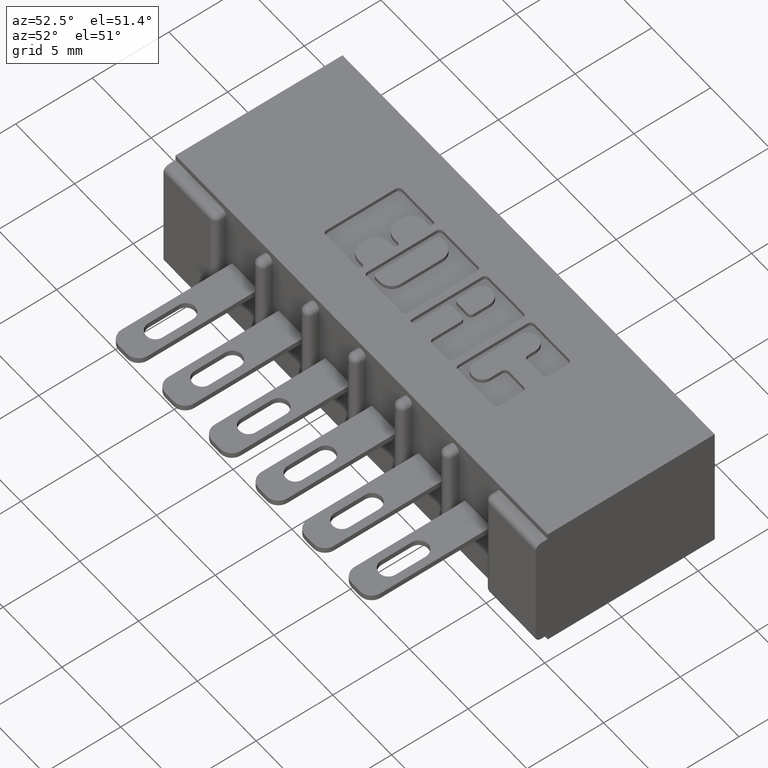
[diagram: clean part render]
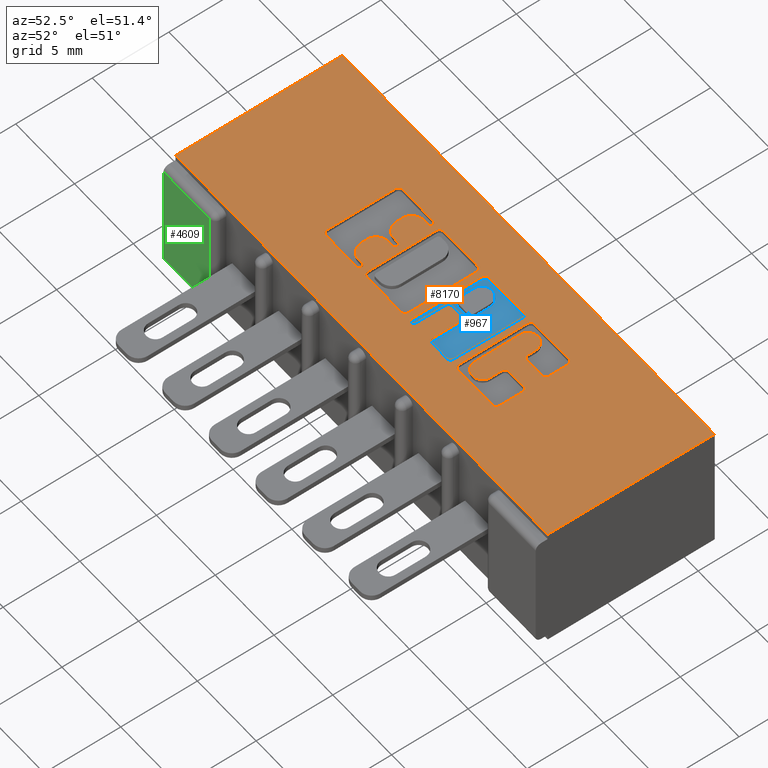
[diagram: same view with three faces highlighted in distinct colors, each labeled with its STEP entity id]
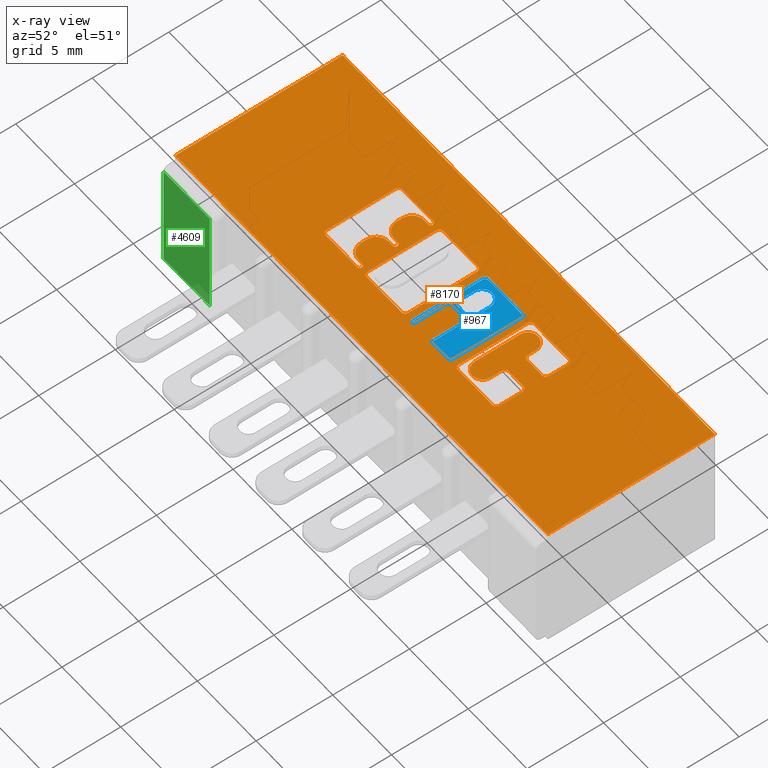
[diagram: x-ray of the same camera — body ghosted, the three highlighted faces saturated]
A machine part, auxiliary view with three faces highlighted in distinct colors.
The next image is the same camera in x-ray (body ghosted, the three faces saturated) — at least one of them is partly hidden behind the body in this view.
Their STEP definitions:

[orange] entity #8170 — the highlighted planar face has unit normal (0, 0, -1).
#45 = DIRECTION ( 'NONE',  ( 1.000000000000000000, 0.0000000000000000000, 0.0000000000000000000 ) ) ;
#46 = LINE ( 'NONE', #2171, #8092 ) ;
#49 = AXIS2_PLACEMENT_3D ( 'NONE', #10112, #2306, #728 ) ;
#60 = DIRECTION ( 'NONE',  ( -1.000000000000000000, 0.0000000000000000000, 0.0000000000000000000 ) ) ;
#129 = VERTEX_POINT ( 'NONE', #3137 ) ;
#134 = VECTOR ( 'NONE', #6921, 39.37007874015748100 ) ;
#176 = VECTOR ( 'NONE', #3289, 39.37007874015748100 ) ;
#199 = CIRCLE ( 'NONE', #4747, 0.009815670203803203800 ) ;
#202 = ORIENTED_EDGE ( 'NONE', *, *, #9957, .F. ) ;
#203 = CARTESIAN_POINT ( 'NONE',  ( 0.0000000000000000000, 0.3436567020380538200, 0.0000000000000000000 ) ) ;
#233 = LINE ( 'NONE', #8813, #6945 ) ;
#261 = EDGE_CURVE ( 'NONE', #4517, #1143, #3594, .T. ) ;
#265 = ORIENTED_EDGE ( 'NONE', *, *, #5327, .F. ) ;
#285 = AXIS2_PLACEMENT_3D ( 'NONE', #8508, #5412, #9147 ) ;
#291 = CARTESIAN_POINT ( 'NONE',  ( 1.842000000000000700, 0.03100000000000000000, 0.0000000000000000000 ) ) ;
#292 = DIRECTION ( 'NONE',  ( 0.0000000000000000000, 1.000000000000000000, -0.0000000000000000000 ) ) ;
#295 = ORIENTED_EDGE ( 'NONE', *, *, #5079, .F. ) ;
#307 = VERTEX_POINT ( 'NONE', #9976 ) ;
#363 = EDGE_CURVE ( 'NONE', #9235, #4708, #46, .T. ) ;
#382 = ORIENTED_EDGE ( 'NONE', *, *, #1161, .F. ) ;
#417 = EDGE_CURVE ( 'NONE', #4938, #8009, #1027, .T. ) ;
#433 = EDGE_CURVE ( 'NONE', #1494, #2745, #7725, .T. ) ;
#448 = ORIENTED_EDGE ( 'NONE', *, *, #804, .T. ) ;
#454 = LINE ( 'NONE', #2800, #4611 ) ;
#471 = VECTOR ( 'NONE', #8841, 39.37007874015748100 ) ;
#479 = VECTOR ( 'NONE', #1072, 39.37007874015748100 ) ;
#541 = ORIENTED_EDGE ( 'NONE', *, *, #6584, .F. ) ;
#557 = ORIENTED_EDGE ( 'NONE', *, *, #6664, .F. ) ;
#565 = ORIENTED_EDGE ( 'NONE', *, *, #7540, .F. ) ;
#567 = VERTEX_POINT ( 'NONE', #6818 ) ;
#595 = CIRCLE ( 'NONE', #3303, 0.006870969142663458500 ) ;
#613 = AXIS2_PLACEMENT_3D ( 'NONE', #2418, #4695, #3233 ) ;
#659 = EDGE_CURVE ( 'NONE', #8808, #1494, #1993, .T. ) ;
#682 = DIRECTION ( 'NONE',  ( 1.000000000000000000, 0.0000000000000000000, 0.0000000000000000000 ) ) ;
#688 = EDGE_CURVE ( 'NONE', #9333, #9814, #10080, .T. ) ;
#701 = EDGE_CURVE ( 'NONE', #7745, #2344, #6393, .T. ) ;
#728 = DIRECTION ( 'NONE',  ( 1.000000000000000000, 0.0000000000000000000, 0.0000000000000000000 ) ) ;
#760 = EDGE_CURVE ( 'NONE', #6118, #9730, #3469, .T. ) ;
#785 = VERTEX_POINT ( 'NONE', #1513 ) ;
#801 = CARTESIAN_POINT ( 'NONE',  ( 1.065044960240807000, 0.3338410318342037700, 0.0000000000000000000 ) ) ;
#804 = EDGE_CURVE ( 'NONE', #9561, #7755, #5053, .T. ) ;
#808 = VERTEX_POINT ( 'NONE', #2416 ) ;
#847 = DIRECTION ( 'NONE',  ( 1.000000000000000000, 0.0000000000000000000, 0.0000000000000000000 ) ) ;
#848 = CARTESIAN_POINT ( 'NONE',  ( 0.0000000000000000000, 0.3436567020380538200, 0.0000000000000000000 ) ) ;
#849 = AXIS2_PLACEMENT_3D ( 'NONE', #10012, #1463, #682 ) ;
#863 = CARTESIAN_POINT ( 'NONE',  ( 0.7541336065353515500, 0.3367857328953891000, 0.0000000000000000000 ) ) ;
#889 = VECTOR ( 'NONE', #6386, 39.37007874015748100 ) ;
#942 = VERTEX_POINT ( 'NONE', #4929 ) ;
#965 = VERTEX_POINT ( 'NONE', #3401 ) ;
#1000 = DIRECTION ( 'NONE',  ( 0.0000000000000000000, -1.000000000000000000, 0.0000000000000000000 ) ) ;
#1027 = LINE ( 'NONE', #3909, #9074 ) ;
#1034 = ORIENTED_EDGE ( 'NONE', *, *, #8293, .T. ) ;
#1064 = CARTESIAN_POINT ( 'NONE',  ( 0.9433306497136472200, 0.2288133606535484000, 0.0000000000000000000 ) ) ;
#1068 = CARTESIAN_POINT ( 'NONE',  ( 0.9124112885716693100, 0.1571589681657927500, 0.0000000000000000000 ) ) ;
#1072 = DIRECTION ( 'NONE',  ( 1.000000000000000000, 0.0000000000000000000, 0.0000000000000000000 ) ) ;
#1077 = CIRCLE ( 'NONE', #8979, 0.02625691779517367100 ) ;
#1096 = DIRECTION ( 'NONE',  ( 1.000000000000000000, 0.0000000000000000000, 0.0000000000000000000 ) ) ;
#1133 = CARTESIAN_POINT ( 'NONE',  ( 0.7406370600051257500, 0.2985046191005226200, 0.0000000000000000000 ) ) ;
#1142 = CARTESIAN_POINT ( 'NONE',  ( 0.9124112885716693100, 0.0000000000000000000, 0.0000000000000000000 ) ) ;
#1143 = VERTEX_POINT ( 'NONE', #2810 ) ;
#1161 = EDGE_CURVE ( 'NONE', #9730, #4298, #5152, .T. ) ;
#1205 = CARTESIAN_POINT ( 'NONE',  ( 0.9025956183678282000, 0.3338410318342128200, 0.0000000000000000000 ) ) ;
#1210 = CIRCLE ( 'NONE', #9584, 0.009815670203787086500 ) ;
#1236 = CIRCLE ( 'NONE', #2378, 0.009815670203841039800 ) ;
#1247 = EDGE_CURVE ( 'NONE', #7784, #9615, #6980, .T. ) ;
#1253 = DIRECTION ( 'NONE',  ( 1.000000000000000000, 0.0000000000000000000, 0.0000000000000000000 ) ) ;
#1274 = AXIS2_PLACEMENT_3D ( 'NONE', #5692, #4041, #7176 ) ;
#1305 = EDGE_CURVE ( 'NONE', #3373, #129, #9806, .T. ) ;
#1322 = CARTESIAN_POINT ( 'NONE',  ( 0.9531463199174504700, 0.2386290308573514900, 0.0000000000000000000 ) ) ;
#1387 = ORIENTED_EDGE ( 'NONE', *, *, #4380, .T. ) ;
#1388 = DIRECTION ( 'NONE',  ( 1.000000000000000000, 0.0000000000000000000, 0.0000000000000000000 ) ) ;
#1395 = EDGE_LOOP ( 'NONE', ( #6969, #7847, #9977, #2131 ) ) ;
#1463 = DIRECTION ( 'NONE',  ( -0.0000000000000000000, 0.0000000000000000000, 1.000000000000000000 ) ) ;
#1464 = ORIENTED_EDGE ( 'NONE', *, *, #701, .T. ) ;
#1494 = VERTEX_POINT ( 'NONE', #2402 ) ;
#1513 = CARTESIAN_POINT ( 'NONE',  ( 0.7541336064154146000, 0.1473432979619885300, 0.0000000000000000000 ) ) ;
#1526 = CARTESIAN_POINT ( 'NONE',  ( 1.082222383097458900, 0.3338410318342129300, 0.0000000000000000000 ) ) ;
#1539 = DIRECTION ( 'NONE',  ( -0.0000000000000000000, 0.0000000000000000000, 1.000000000000000000 ) ) ;
#1551 = CARTESIAN_POINT ( 'NONE',  ( 0.9433306497136472200, 0.0000000000000000000, 0.0000000000000000000 ) ) ;
#1562 = DIRECTION ( 'NONE',  ( -0.0000000000000000000, 0.0000000000000000000, 1.000000000000000000 ) ) ;
#1595 = CARTESIAN_POINT ( 'NONE',  ( 1.207862961706168700, 0.3436567020380538200, 0.0000000000000000000 ) ) ;
#1597 = CARTESIAN_POINT ( 'NONE',  ( 0.7406370600050843400, 0.2837811137948611500, 0.0000000000000000000 ) ) ;
#1598 = LINE ( 'NONE', #6967, #2588 ) ;
#1616 = DIRECTION ( 'NONE',  ( 0.0000000000000000000, -1.000000000000000000, 0.0000000000000000000 ) ) ;
#1618 = AXIS2_PLACEMENT_3D ( 'NONE', #4553, #2198, #6865 ) ;
#1647 = CARTESIAN_POINT ( 'NONE',  ( 1.217678631909972400, 0.3338410318341976700, 0.0000000000000000000 ) ) ;
#1655 = VECTOR ( 'NONE', #2512, 39.37007874015748100 ) ;
#1678 = DIRECTION ( 'NONE',  ( -0.0000000000000000000, 0.0000000000000000000, 1.000000000000000000 ) ) ;
#1719 = DIRECTION ( 'NONE',  ( 1.000000000000000000, 0.0000000000000000000, 0.0000000000000000000 ) ) ;
#1730 = CARTESIAN_POINT ( 'NONE',  ( -0.0000000000000000000, 0.3299147637527385400, 0.0000000000000000000 ) ) ;
#1734 = CARTESIAN_POINT ( 'NONE',  ( 0.9958444853039849500, 0.0000000000000000000, 0.0000000000000000000 ) ) ;
#1760 = VERTEX_POINT ( 'NONE', #6073 ) ;
#1766 = FACE_BOUND ( 'NONE', #7168, .T. ) ;
#1778 = VERTEX_POINT ( 'NONE', #1322 ) ;
#1782 = PLANE ( 'NONE',  #9552 ) ;
#1787 = EDGE_CURVE ( 'NONE', #2135, #7332, #6316, .T. ) ;
#1821 = CARTESIAN_POINT ( 'NONE',  ( 0.7406370600050843400, 0.2386290308573596500, 0.0000000000000000000 ) ) ;
#1828 = DIRECTION ( 'NONE',  ( -1.000000000000000000, 0.0000000000000000000, 0.0000000000000000000 ) ) ;
#1851 = VERTEX_POINT ( 'NONE', #1595 ) ;
#1927 = VERTEX_POINT ( 'NONE', #8784 ) ;
#1988 = LINE ( 'NONE', #4322, #2736 ) ;
#1993 = LINE ( 'NONE', #4594, #3230 ) ;
#1997 = CARTESIAN_POINT ( 'NONE',  ( 0.0000000000000000000, 0.2523709691426866400, 0.0000000000000000000 ) ) ;
#2000 = EDGE_CURVE ( 'NONE', #3641, #2657, #6720, .T. ) ;
#2007 = FACE_BOUND ( 'NONE', #9750, .T. ) ;
#2034 = DIRECTION ( 'NONE',  ( -0.0000000000000000000, 0.0000000000000000000, 1.000000000000000000 ) ) ;
#2048 = CARTESIAN_POINT ( 'NONE',  ( 1.544000000000000700, 0.03100000000000000000, 0.0000000000000000000 ) ) ;
#2060 = ORIENTED_EDGE ( 'NONE', *, *, #417, .F. ) ;
#2119 = DIRECTION ( 'NONE',  ( -0.0000000000000000000, 0.0000000000000000000, 1.000000000000000000 ) ) ;
#2125 = DIRECTION ( 'NONE',  ( 1.000000000000000000, 0.0000000000000000000, 0.0000000000000000000 ) ) ;
#2131 = ORIENTED_EDGE ( 'NONE', *, *, #3255, .F. ) ;
#2135 = VERTEX_POINT ( 'NONE', #3474 ) ;
#2151 = ORIENTED_EDGE ( 'NONE', *, *, #2294, .F. ) ;
#2169 = AXIS2_PLACEMENT_3D ( 'NONE', #10040, #7564, #4491 ) ;
#2171 = CARTESIAN_POINT ( 'NONE',  ( 0.0000000000000000000, 0.1473432979619874200, 0.0000000000000000000 ) ) ;
#2193 = LINE ( 'NONE', #7520, #6586 ) ;
#2198 = DIRECTION ( 'NONE',  ( -0.0000000000000000000, 0.0000000000000000000, 1.000000000000000000 ) ) ;
#2236 = AXIS2_PLACEMENT_3D ( 'NONE', #9502, #9437, #45 ) ;
#2248 = CARTESIAN_POINT ( 'NONE',  ( 0.6400264404161156700, 0.3338410318342129300, 0.0000000000000000000 ) ) ;
#2258 = LINE ( 'NONE', #4035, #7726 ) ;
#2294 = EDGE_CURVE ( 'NONE', #2490, #3641, #1236, .T. ) ;
#2306 = DIRECTION ( 'NONE',  ( -0.0000000000000000000, 0.0000000000000000000, 1.000000000000000000 ) ) ;
#2333 = DIRECTION ( 'NONE',  ( 1.000000000000000000, 0.0000000000000000000, 0.0000000000000000000 ) ) ;
#2342 = DIRECTION ( 'NONE',  ( 1.000000000000000000, 0.0000000000000000000, 0.0000000000000000000 ) ) ;
#2344 = VERTEX_POINT ( 'NONE', #8328 ) ;
#2372 = CARTESIAN_POINT ( 'NONE',  ( -0.0000000000000000000, 0.1473432979619860000, 0.0000000000000000000 ) ) ;
#2378 = AXIS2_PLACEMENT_3D ( 'NONE', #1205, #6725, #7433 ) ;
#2389 = ORIENTED_EDGE ( 'NONE', *, *, #8673, .F. ) ;
#2397 = DIRECTION ( 'NONE',  ( 1.000000000000000000, 0.0000000000000000000, 0.0000000000000000000 ) ) ;
#2402 = CARTESIAN_POINT ( 'NONE',  ( 0.7769550397591695700, 0.1571589681657927500, 0.0000000000000000000 ) ) ;
#2416 = CARTESIAN_POINT ( 'NONE',  ( 0.7541336065353102500, 0.2523709691426866400, 0.0000000000000000000 ) ) ;
#2418 = CARTESIAN_POINT ( 'NONE',  ( 0.6498421106199383500, 0.3338410318342129300, 0.0000000000000000000 ) ) ;
#2424 = VERTEX_POINT ( 'NONE', #8475 ) ;
#2450 = CARTESIAN_POINT ( 'NONE',  ( 0.6498421106199383500, 0.3436567020380355600, 0.0000000000000000000 ) ) ;
#2466 = VERTEX_POINT ( 'NONE', #10033 ) ;
#2471 = CIRCLE ( 'NONE', #7139, 0.009815670203806345400 ) ;
#2474 = DIRECTION ( 'NONE',  ( 1.000000000000000000, 0.0000000000000000000, 0.0000000000000000000 ) ) ;
#2477 = EDGE_CURVE ( 'NONE', #1143, #567, #1598, .T. ) ;
#2486 = CARTESIAN_POINT ( 'NONE',  ( 1.217678631909940400, 0.1571589681657857800, 0.0000000000000000000 ) ) ;
#2490 = VERTEX_POINT ( 'NONE', #6093 ) ;
#2512 = DIRECTION ( 'NONE',  ( -1.000000000000000000, -1.189163988687022500E-013, 0.0000000000000000000 ) ) ;
#2524 = CARTESIAN_POINT ( 'NONE',  ( 1.148478156973166100, 0.0000000000000000000, 0.0000000000000000000 ) ) ;
#2527 = ORIENTED_EDGE ( 'NONE', *, *, #8110, .F. ) ;
#2569 = CARTESIAN_POINT ( 'NONE',  ( 0.6400264404161156700, 0.1571589681657927500, 0.0000000000000000000 ) ) ;
#2588 = VECTOR ( 'NONE', #2342, 39.37007874015748100 ) ;
#2603 = DIRECTION ( 'NONE',  ( -1.000000000000000000, 0.0000000000000000000, 0.0000000000000000000 ) ) ;
#2612 = VERTEX_POINT ( 'NONE', #2486 ) ;
#2613 = ORIENTED_EDGE ( 'NONE', *, *, #2477, .F. ) ;
#2647 = DIRECTION ( 'NONE',  ( 1.000000000000000000, 0.0000000000000000000, 0.0000000000000000000 ) ) ;
#2657 = VERTEX_POINT ( 'NONE', #7206 ) ;
#2660 = CARTESIAN_POINT ( 'NONE',  ( 0.7541336065353102500, 0.2455000000000231700, 0.0000000000000000000 ) ) ;
#2695 = CARTESIAN_POINT ( 'NONE',  ( 0.7092269153529097100, 0.0000000000000000000, 0.0000000000000000000 ) ) ;
#2711 = LINE ( 'NONE', #4676, #134 ) ;
#2722 = CARTESIAN_POINT ( 'NONE',  ( 0.9531463199174504700, 0.2288133606535484000, 0.0000000000000000000 ) ) ;
#2736 = VECTOR ( 'NONE', #8184, 39.37007874015748100 ) ;
#2745 = VERTEX_POINT ( 'NONE', #5062 ) ;
#2785 = VERTEX_POINT ( 'NONE', #1068 ) ;
#2795 = CARTESIAN_POINT ( 'NONE',  ( 0.7406370600051257500, 0.3299147637527385400, 0.0000000000000000000 ) ) ;
#2800 = CARTESIAN_POINT ( 'NONE',  ( 1.217678631909940400, 0.0000000000000000000, 0.0000000000000000000 ) ) ;
#2810 = CARTESIAN_POINT ( 'NONE',  ( 1.092038053301265700, 0.1473432979619860000, 0.0000000000000000000 ) ) ;
#2867 = CIRCLE ( 'NONE', #10074, 0.009815670203795690700 ) ;
#2908 = CARTESIAN_POINT ( 'NONE',  ( -1.013135022034653000E-015, 0.1473432979619833400, 0.0000000000000000000 ) ) ;
#2913 = EDGE_LOOP ( 'NONE', ( #2151, #7578, #557, #3563, #8078, #5828, #4132, #8334 ) ) ;
#2915 = LINE ( 'NONE', #203, #6922 ) ;
#2954 = EDGE_CURVE ( 'NONE', #8916, #6715, #2193, .T. ) ;
#2955 = DIRECTION ( 'NONE',  ( -0.0000000000000000000, 0.0000000000000000000, 1.000000000000000000 ) ) ;
#2956 = CARTESIAN_POINT ( 'NONE',  ( 0.7406370600051098700, 0.1610852362473114100, 0.0000000000000000000 ) ) ;
#2961 = ORIENTED_EDGE ( 'NONE', *, *, #4393, .F. ) ;
#3050 = CARTESIAN_POINT ( 'NONE',  ( 1.148478156973179200, 0.0000000000000000000, 0.0000000000000000000 ) ) ;
#3103 = ORIENTED_EDGE ( 'NONE', *, *, #363, .T. ) ;
#3137 = CARTESIAN_POINT ( 'NONE',  ( 1.158293827176977600, 0.2744562271012364100, 0.0000000000000000000 ) ) ;
#3139 = LINE ( 'NONE', #291, #8859 ) ;
#3165 = ORIENTED_EDGE ( 'NONE', *, *, #8247, .F. ) ;
#3172 = LINE ( 'NONE', #8365, #9653 ) ;
#3173 = DIRECTION ( 'NONE',  ( 1.000000000000000000, 0.0000000000000000000, 0.0000000000000000000 ) ) ;
#3230 = VECTOR ( 'NONE', #7743, 39.37007874015748100 ) ;
#3233 = DIRECTION ( 'NONE',  ( 1.000000000000000000, 0.0000000000000000000, 0.0000000000000000000 ) ) ;
#3252 = CIRCLE ( 'NONE', #4170, 0.006870969142662229500 ) ;
#3253 = ORIENTED_EDGE ( 'NONE', *, *, #3429, .T. ) ;
#3255 = EDGE_CURVE ( 'NONE', #1760, #8916, #3172, .T. ) ;
#3256 = CARTESIAN_POINT ( 'NONE',  ( 1.217678631909972400, 0.2842718973050414900, 0.0000000000000000000 ) ) ;
#3289 = DIRECTION ( 'NONE',  ( 0.0000000000000000000, 1.000000000000000000, -0.0000000000000000000 ) ) ;
#3296 = ORIENTED_EDGE ( 'NONE', *, *, #3997, .F. ) ;
#3303 = AXIS2_PLACEMENT_3D ( 'NONE', #2660, #2034, #7469 ) ;
#3304 = DIRECTION ( 'NONE',  ( 1.000000000000000000, 0.0000000000000000000, 0.0000000000000000000 ) ) ;
#3345 = ORIENTED_EDGE ( 'NONE', *, *, #8778, .T. ) ;
#3347 = VERTEX_POINT ( 'NONE', #6028 ) ;
#3350 = VECTOR ( 'NONE', #1616, 39.37007874015748100 ) ;
#3365 = FACE_BOUND ( 'NONE', #8388, .T. ) ;
#3373 = VERTEX_POINT ( 'NONE', #5995 ) ;
#3401 = CARTESIAN_POINT ( 'NONE',  ( 0.7092269153529097100, 0.2837811137948611500, 0.0000000000000000000 ) ) ;
#3408 = VERTEX_POINT ( 'NONE', #8325 ) ;
#3415 = EDGE_CURVE ( 'NONE', #9101, #5258, #6220, .T. ) ;
#3429 = EDGE_CURVE ( 'NONE', #4610, #3408, #6337, .T. ) ;
#3443 = VERTEX_POINT ( 'NONE', #3544 ) ;
#3460 = ORIENTED_EDGE ( 'NONE', *, *, #7124, .F. ) ;
#3469 = CIRCLE ( 'NONE', #2236, 0.006870969142648433200 ) ;
#3472 = DIRECTION ( 'NONE',  ( -0.0000000000000000000, 0.0000000000000000000, 1.000000000000000000 ) ) ;
#3474 = CARTESIAN_POINT ( 'NONE',  ( 1.158293827176967400, 0.2268502266127603600, 0.0000000000000000000 ) ) ;
#3544 = CARTESIAN_POINT ( 'NONE',  ( 0.9958444853039849500, 0.2288133606535462700, 0.0000000000000000000 ) ) ;
#3563 = ORIENTED_EDGE ( 'NONE', *, *, #9386, .F. ) ;
#3567 = DIRECTION ( 'NONE',  ( -1.000000000000000000, 0.0000000000000000000, 0.0000000000000000000 ) ) ;
#3578 = AXIS2_PLACEMENT_3D ( 'NONE', #5872, #4242, #8200 ) ;
#3594 = CIRCLE ( 'NONE', #2169, 0.009815670203806754800 ) ;
#3618 = VERTEX_POINT ( 'NONE', #2248 ) ;
#3641 = VERTEX_POINT ( 'NONE', #6802 ) ;
#3714 = AXIS2_PLACEMENT_3D ( 'NONE', #7851, #6199, #7069 ) ;
#3718 = CARTESIAN_POINT ( 'NONE',  ( 1.158293827176967400, 0.2170345564089724000, 0.0000000000000000000 ) ) ;
#3719 = CIRCLE ( 'NONE', #3578, 0.006870969142657995000 ) ;
#3727 = DIRECTION ( 'NONE',  ( -0.0000000000000000000, 0.0000000000000000000, 1.000000000000000000 ) ) ;
#3733 = VERTEX_POINT ( 'NONE', #1526 ) ;
#3769 = CARTESIAN_POINT ( 'NONE',  ( 1.065044960240807000, 0.0000000000000000000, 0.0000000000000000000 ) ) ;
#3799 = CARTESIAN_POINT ( 'NONE',  ( 1.148478156973166100, 0.3036578454992627200, 0.0000000000000000000 ) ) ;
#3824 = VECTOR ( 'NONE', #3567, 39.37007874015748100 ) ;
#3826 = EDGE_CURVE ( 'NONE', #1927, #4815, #1210, .T. ) ;
#3909 = CARTESIAN_POINT ( 'NONE',  ( 1.217678631909972400, 0.0000000000000000000, 0.0000000000000000000 ) ) ;
#3915 = EDGE_CURVE ( 'NONE', #4815, #2135, #233, .T. ) ;
#3997 = EDGE_CURVE ( 'NONE', #129, #6158, #6221, .T. ) ;
#4018 = CARTESIAN_POINT ( 'NONE',  ( 1.207862961706153400, 0.2170345564089732300, 0.0000000000000000000 ) ) ;
#4035 = CARTESIAN_POINT ( 'NONE',  ( 1.544000000000000700, 0.0000000000000000000, 0.0000000000000000000 ) ) ;
#4041 = DIRECTION ( 'NONE',  ( -0.0000000000000000000, 0.0000000000000000000, 1.000000000000000000 ) ) ;
#4049 = EDGE_CURVE ( 'NONE', #2424, #2466, #595, .T. ) ;
#4100 = CIRCLE ( 'NONE', #8667, 0.009815670203806891800 ) ;
#4132 = ORIENTED_EDGE ( 'NONE', *, *, #6846, .F. ) ;
#4153 = VECTOR ( 'NONE', #8990, 39.37007874015748100 ) ;
#4162 = EDGE_CURVE ( 'NONE', #307, #9206, #10153, .T. ) ;
#4170 = AXIS2_PLACEMENT_3D ( 'NONE', #8735, #1678, #2474 ) ;
#4198 = ORIENTED_EDGE ( 'NONE', *, *, #7348, .F. ) ;
#4214 = LINE ( 'NONE', #4831, #176 ) ;
#4242 = DIRECTION ( 'NONE',  ( -0.0000000000000000000, 0.0000000000000000000, 1.000000000000000000 ) ) ;
#4264 = EDGE_CURVE ( 'NONE', #4298, #3618, #9384, .T. ) ;
#4273 = ORIENTED_EDGE ( 'NONE', *, *, #4162, .T. ) ;
#4298 = VERTEX_POINT ( 'NONE', #2450 ) ;
#4322 = CARTESIAN_POINT ( 'NONE',  ( 1.082222383097458900, 0.0000000000000000000, 0.0000000000000000000 ) ) ;
#4331 = EDGE_CURVE ( 'NONE', #6066, #3373, #9770, .T. ) ;
#4336 = CARTESIAN_POINT ( 'NONE',  ( 0.9295887114283312200, 0.0000000000000000000, 0.0000000000000000000 ) ) ;
#4367 = EDGE_CURVE ( 'NONE', #3618, #5159, #6211, .T. ) ;
#4375 = CARTESIAN_POINT ( 'NONE',  ( 0.9394043816321276900, 0.3436567020380094100, 0.0000000000000000000 ) ) ;
#4380 = EDGE_CURVE ( 'NONE', #6066, #8800, #1077, .T. ) ;
#4393 = EDGE_CURVE ( 'NONE', #4951, #3733, #10148, .T. ) ;
#4418 = CARTESIAN_POINT ( 'NONE',  ( -0.0000000000000000000, 0.2744562271012364100, 0.0000000000000000000 ) ) ;
#4446 = FACE_BOUND ( 'NONE', #2913, .T. ) ;
#4467 = DIRECTION ( 'NONE',  ( -0.0000000000000000000, 0.0000000000000000000, 1.000000000000000000 ) ) ;
#4479 = CIRCLE ( 'NONE', #7871, 0.006870969142663458500 ) ;
#4481 = EDGE_CURVE ( 'NONE', #8954, #9804, #9259, .T. ) ;
#4491 = DIRECTION ( 'NONE',  ( 1.000000000000000000, 0.0000000000000000000, 0.0000000000000000000 ) ) ;
#4517 = VERTEX_POINT ( 'NONE', #9748 ) ;
#4525 = ORIENTED_EDGE ( 'NONE', *, *, #8943, .F. ) ;
#4527 = DIRECTION ( 'NONE',  ( -1.000000000000000000, -3.427012734660361200E-014, 0.0000000000000000000 ) ) ;
#4534 = VECTOR ( 'NONE', #60, 39.37007874015748100 ) ;
#4543 = DIRECTION ( 'NONE',  ( -0.0000000000000000000, 0.0000000000000000000, 1.000000000000000000 ) ) ;
#4553 = CARTESIAN_POINT ( 'NONE',  ( 1.005660155507788200, 0.1571589681657906400, 0.0000000000000000000 ) ) ;
#4564 = CIRCLE ( 'NONE', #6210, 0.03141014465217454400 ) ;
#4594 = CARTESIAN_POINT ( 'NONE',  ( 0.7769550397591695700, 0.0000000000000000000, 0.0000000000000000000 ) ) ;
#4606 = CARTESIAN_POINT ( 'NONE',  ( 0.7867707099630104600, 0.3338410318342129300, 0.0000000000000000000 ) ) ;
#4610 = VERTEX_POINT ( 'NONE', #4375 ) ;
#4611 = VECTOR ( 'NONE', #7387, 39.37007874015748100 ) ;
#4615 = ORIENTED_EDGE ( 'NONE', *, *, #3826, .F. ) ;
#4634 = DIRECTION ( 'NONE',  ( -0.0000000000000000000, 0.0000000000000000000, 1.000000000000000000 ) ) ;
#4650 = AXIS2_PLACEMENT_3D ( 'NONE', #5791, #5122, #1096 ) ;
#4676 = CARTESIAN_POINT ( 'NONE',  ( 1.095964321382818700, 0.0000000000000000000, 0.0000000000000000000 ) ) ;
#4689 = VECTOR ( 'NONE', #847, 39.37007874015748100 ) ;
#4695 = DIRECTION ( 'NONE',  ( -0.0000000000000000000, 0.0000000000000000000, 1.000000000000000000 ) ) ;
#4708 = VERTEX_POINT ( 'NONE', #8276 ) ;
#4747 = AXIS2_PLACEMENT_3D ( 'NONE', #2722, #9725, #5831 ) ;
#4808 = VECTOR ( 'NONE', #7961, 39.37007874015748100 ) ;
#4815 = VERTEX_POINT ( 'NONE', #10020 ) ;
#4819 = VECTOR ( 'NONE', #10070, 39.37007874015748100 ) ;
#4831 = CARTESIAN_POINT ( 'NONE',  ( 0.7092269153529280300, 0.0000000000000000000, 0.0000000000000000000 ) ) ;
#4841 = ORIENTED_EDGE ( 'NONE', *, *, #5374, .T. ) ;
#4844 = ORIENTED_EDGE ( 'NONE', *, *, #6397, .F. ) ;
#4929 = CARTESIAN_POINT ( 'NONE',  ( 0.7541336065353516600, 0.3299147637527385400, 0.0000000000000000000 ) ) ;
#4938 = VERTEX_POINT ( 'NONE', #3256 ) ;
#4945 = AXIS2_PLACEMENT_3D ( 'NONE', #1133, #5823, #9717 ) ;
#4951 = VERTEX_POINT ( 'NONE', #9387 ) ;
#4998 = VERTEX_POINT ( 'NONE', #6317 ) ;
#5033 = LINE ( 'NONE', #2372, #889 ) ;
#5053 = LINE ( 'NONE', #1551, #3350 ) ;
#5062 = CARTESIAN_POINT ( 'NONE',  ( 0.7867707099629762700, 0.1473432979619860000, 0.0000000000000000000 ) ) ;
#5079 = EDGE_CURVE ( 'NONE', #1851, #4951, #2915, .T. ) ;
#5080 = ORIENTED_EDGE ( 'NONE', *, *, #5253, .F. ) ;
#5122 = DIRECTION ( 'NONE',  ( -0.0000000000000000000, 0.0000000000000000000, 1.000000000000000000 ) ) ;
#5152 = LINE ( 'NONE', #7398, #5274 ) ;
#5159 = VERTEX_POINT ( 'NONE', #2569 ) ;
#5161 = VERTEX_POINT ( 'NONE', #6610 ) ;
#5253 = EDGE_CURVE ( 'NONE', #2612, #1927, #454, .T. ) ;
#5258 = VERTEX_POINT ( 'NONE', #9769 ) ;
#5262 = AXIS2_PLACEMENT_3D ( 'NONE', #8024, #3472, #7305 ) ;
#5267 = DIRECTION ( 'NONE',  ( -0.0000000000000000000, 1.000000000000000000, -0.0000000000000000000 ) ) ;
#5274 = VECTOR ( 'NONE', #9846, 39.37007874015748100 ) ;
#5327 = EDGE_CURVE ( 'NONE', #2466, #808, #4479, .T. ) ;
#5346 = AXIS2_PLACEMENT_3D ( 'NONE', #4606, #4634, #6917 ) ;
#5359 = AXIS2_PLACEMENT_3D ( 'NONE', #863, #8560, #2333 ) ;
#5368 = EDGE_CURVE ( 'NONE', #5395, #785, #6787, .T. ) ;
#5374 = EDGE_CURVE ( 'NONE', #9721, #1778, #7280, .T. ) ;
#5395 = VERTEX_POINT ( 'NONE', #6775 ) ;
#5402 = DIRECTION ( 'NONE',  ( 0.0000000000000000000, -1.000000000000000000, 0.0000000000000000000 ) ) ;
#5412 = DIRECTION ( 'NONE',  ( -0.0000000000000000000, 0.0000000000000000000, 1.000000000000000000 ) ) ;
#5466 = DIRECTION ( 'NONE',  ( 1.000000000000000000, 0.0000000000000000000, 0.0000000000000000000 ) ) ;
#5581 = CARTESIAN_POINT ( 'NONE',  ( -1.915567620543394800E-014, 0.1610852362472233500, 0.0000000000000000000 ) ) ;
#5630 = CARTESIAN_POINT ( 'NONE',  ( 0.7769550397591695700, 0.3338410318342129300, 0.0000000000000000000 ) ) ;
#5643 = DIRECTION ( 'NONE',  ( 0.0000000000000000000, 0.0000000000000000000, -1.000000000000000000 ) ) ;
#5656 = LINE ( 'NONE', #3050, #9558 ) ;
#5692 = CARTESIAN_POINT ( 'NONE',  ( 1.092038053301299700, 0.3338410318342129300, 0.0000000000000000000 ) ) ;
#5727 = DIRECTION ( 'NONE',  ( -0.0000000000000000000, 0.0000000000000000000, 1.000000000000000000 ) ) ;
#5748 = EDGE_CURVE ( 'NONE', #1778, #9561, #199, .T. ) ;
#5753 = CARTESIAN_POINT ( 'NONE',  ( 0.9433306497136472200, 0.1542142671046507800, 0.0000000000000000000 ) ) ;
#5762 = DIRECTION ( 'NONE',  ( -1.000000000000000000, -0.0000000000000000000, -0.0000000000000000000 ) ) ;
#5779 = EDGE_CURVE ( 'NONE', #9235, #9814, #7622, .T. ) ;
#5790 = LINE ( 'NONE', #2695, #8193 ) ;
#5791 = CARTESIAN_POINT ( 'NONE',  ( 0.7867707099629762700, 0.1571589681657927500, 0.0000000000000000000 ) ) ;
#5823 = DIRECTION ( 'NONE',  ( -0.0000000000000000000, 0.0000000000000000000, 1.000000000000000000 ) ) ;
#5828 = ORIENTED_EDGE ( 'NONE', *, *, #659, .F. ) ;
#5831 = DIRECTION ( 'NONE',  ( 1.000000000000000000, 0.0000000000000000000, 0.0000000000000000000 ) ) ;
#5832 = VECTOR ( 'NONE', #9904, 39.37007874015748100 ) ;
#5845 = EDGE_CURVE ( 'NONE', #8490, #1760, #3139, .T. ) ;
#5872 = CARTESIAN_POINT ( 'NONE',  ( 0.9364596805709872700, 0.1542142671046507800, 0.0000000000000000000 ) ) ;
#5928 = ORIENTED_EDGE ( 'NONE', *, *, #4049, .F. ) ;
#5945 = ORIENTED_EDGE ( 'NONE', *, *, #8868, .T. ) ;
#5956 = VECTOR ( 'NONE', #4527, 39.37007874015748100 ) ;
#5981 = CARTESIAN_POINT ( 'NONE',  ( 1.065044960240807000, 0.1571589681657836700, 0.0000000000000000000 ) ) ;
#5995 = CARTESIAN_POINT ( 'NONE',  ( 1.148478156973166100, 0.2842718973050480400, 0.0000000000000000000 ) ) ;
#6004 = VERTEX_POINT ( 'NONE', #6059 ) ;
#6028 = CARTESIAN_POINT ( 'NONE',  ( 0.9025956183678624000, 0.1473432979619860000, 0.0000000000000000000 ) ) ;
#6039 = ORIENTED_EDGE ( 'NONE', *, *, #7320, .F. ) ;
#6047 = DIRECTION ( 'NONE',  ( 1.000000000000000000, 0.0000000000000000000, 0.0000000000000000000 ) ) ;
#6059 = CARTESIAN_POINT ( 'NONE',  ( 0.9958444853039849500, 0.1571589681657906400, 0.0000000000000000000 ) ) ;
#6066 = VERTEX_POINT ( 'NONE', #3799 ) ;
#6073 = CARTESIAN_POINT ( 'NONE',  ( 0.2979999999999999900, 0.03100000000000000000, 0.0000000000000000000 ) ) ;
#6082 = CARTESIAN_POINT ( 'NONE',  ( 1.207862961706167400, 0.2842718973050414900, 0.0000000000000000000 ) ) ;
#6093 = CARTESIAN_POINT ( 'NONE',  ( 0.9124112885716693100, 0.3338410318342129300, 0.0000000000000000000 ) ) ;
#6102 = CARTESIAN_POINT ( 'NONE',  ( 0.7541336065353102500, 0.2455000000000231700, 0.0000000000000000000 ) ) ;
#6118 = VERTEX_POINT ( 'NONE', #8424 ) ;
#6130 = ORIENTED_EDGE ( 'NONE', *, *, #688, .T. ) ;
#6158 = VERTEX_POINT ( 'NONE', #10106 ) ;
#6199 = DIRECTION ( 'NONE',  ( -0.0000000000000000000, 0.0000000000000000000, 1.000000000000000000 ) ) ;
#6210 = AXIS2_PLACEMENT_3D ( 'NONE', #1597, #7047, #2397 ) ;
#6212 = DIRECTION ( 'NONE',  ( 1.000000000000000000, 0.0000000000000000000, 0.0000000000000000000 ) ) ;
#6211 = LINE ( 'NONE', #6465, #471 ) ;
#6220 = LINE ( 'NONE', #4336, #8651 ) ;
#6221 = LINE ( 'NONE', #4418, #479 ) ;
#6237 = CARTESIAN_POINT ( 'NONE',  ( 1.095964321382818700, 0.3036578459575323700, 0.0000000000000000000 ) ) ;
#6273 = ORIENTED_EDGE ( 'NONE', *, *, #1247, .T. ) ;
#6316 = CIRCLE ( 'NONE', #9568, 0.009815670203788042300 ) ;
#6317 = CARTESIAN_POINT ( 'NONE',  ( 0.7541336064154146000, 0.1610852362473130200, 0.0000000000000000000 ) ) ;
#6323 = EDGE_CURVE ( 'NONE', #5161, #4998, #3252, .T. ) ;
#6337 = LINE ( 'NONE', #9834, #4153 ) ;
#6371 = CARTESIAN_POINT ( 'NONE',  ( 1.055229290037011900, 0.3338410318342132100, 0.0000000000000000000 ) ) ;
#6386 = DIRECTION ( 'NONE',  ( 1.000000000000000000, 0.0000000000000000000, 0.0000000000000000000 ) ) ;
#6393 = CIRCLE ( 'NONE', #8366, 0.03141014465215624000 ) ;
#6397 = EDGE_CURVE ( 'NONE', #4998, #9206, #9210, .T. ) ;
#6398 = ORIENTED_EDGE ( 'NONE', *, *, #4264, .F. ) ;
#6401 = ORIENTED_EDGE ( 'NONE', *, *, #6323, .F. ) ;
#6428 = DIRECTION ( 'NONE',  ( -1.000000000000000000, 0.0000000000000000000, -0.0000000000000000000 ) ) ;
#6465 = CARTESIAN_POINT ( 'NONE',  ( 0.6400264404161156700, 0.0000000000000000000, 0.0000000000000000000 ) ) ;
#6584 = EDGE_CURVE ( 'NONE', #9101, #7755, #3719, .T. ) ;
#6586 = VECTOR ( 'NONE', #2125, 39.37007874015748100 ) ;
#6610 = CARTESIAN_POINT ( 'NONE',  ( 0.7610045756779980600, 0.1542142671046507800, 0.0000000000000000000 ) ) ;
#6664 = EDGE_CURVE ( 'NONE', #3347, #2785, #4100, .T. ) ;
#6676 = DIRECTION ( 'NONE',  ( -0.0000000000000000000, 0.0000000000000000000, 1.000000000000000000 ) ) ;
#6715 = VERTEX_POINT ( 'NONE', #7511 ) ;
#6720 = LINE ( 'NONE', #848, #4534 ) ;
#6725 = DIRECTION ( 'NONE',  ( -0.0000000000000000000, 0.0000000000000000000, 1.000000000000000000 ) ) ;
#6746 = CARTESIAN_POINT ( 'NONE',  ( 1.207862961706134500, 0.1571589681657927500, 0.0000000000000000000 ) ) ;
#6747 = LINE ( 'NONE', #1142, #8946 ) ;
#6754 = CIRCLE ( 'NONE', #8281, 0.009815670203796920600 ) ;
#6772 = DIRECTION ( 'NONE',  ( 0.0000000000000000000, 1.000000000000000000, -0.0000000000000000000 ) ) ;
#6775 = CARTESIAN_POINT ( 'NONE',  ( 0.6498421106199189200, 0.1473432979619878100, 0.0000000000000000000 ) ) ;
#6780 = ORIENTED_EDGE ( 'NONE', *, *, #9830, .F. ) ;
#6787 = LINE ( 'NONE', #2908, #5832 ) ;
#6788 = DIRECTION ( 'NONE',  ( 1.000000000000000000, 0.0000000000000000000, 0.0000000000000000000 ) ) ;
#6802 = CARTESIAN_POINT ( 'NONE',  ( 0.9025956183678963700, 0.3436567020380538200, 0.0000000000000000000 ) ) ;
#6818 = CARTESIAN_POINT ( 'NONE',  ( 1.207862961706134500, 0.1473432979619860000, 0.0000000000000000000 ) ) ;
#6846 = EDGE_CURVE ( 'NONE', #2657, #8808, #7858, .T. ) ;
#6857 = CARTESIAN_POINT ( 'NONE',  ( 1.055229290037010800, 0.1473432979619874200, 0.0000000000000000000 ) ) ;
#6862 = CIRCLE ( 'NONE', #7691, 0.009815670203796511200 ) ;
#6865 = DIRECTION ( 'NONE',  ( 1.000000000000000000, 0.0000000000000000000, 0.0000000000000000000 ) ) ;
#6867 = LINE ( 'NONE', #1997, #3824 ) ;
#6917 = DIRECTION ( 'NONE',  ( 1.000000000000000000, 0.0000000000000000000, 0.0000000000000000000 ) ) ;
#6921 = DIRECTION ( 'NONE',  ( 0.0000000000000000000, 1.000000000000000000, -0.0000000000000000000 ) ) ;
#6922 = VECTOR ( 'NONE', #2603, 39.37007874015748100 ) ;
#6945 = VECTOR ( 'NONE', #1828, 39.37007874015748100 ) ;
#6967 = CARTESIAN_POINT ( 'NONE',  ( -0.0000000000000000000, 0.1473432979619860000, 0.0000000000000000000 ) ) ;
#6969 = ORIENTED_EDGE ( 'NONE', *, *, #5845, .F. ) ;
#6980 = CIRCLE ( 'NONE', #9636, 0.02625691779518022500 ) ;
#7031 = EDGE_CURVE ( 'NONE', #8954, #942, #8713, .T. ) ;
#7047 = DIRECTION ( 'NONE',  ( -0.0000000000000000000, 0.0000000000000000000, 1.000000000000000000 ) ) ;
#7069 = DIRECTION ( 'NONE',  ( 1.000000000000000000, 0.0000000000000000000, 0.0000000000000000000 ) ) ;
#7124 = EDGE_CURVE ( 'NONE', #9333, #3408, #2867, .T. ) ;
#7139 = AXIS2_PLACEMENT_3D ( 'NONE', #6746, #2119, #6047 ) ;
#7145 = ORIENTED_EDGE ( 'NONE', *, *, #4331, .F. ) ;
#7168 = EDGE_LOOP ( 'NONE', ( #7582, #3296, #8528, #7145, #1387, #202, #6273, #7250, #9165, #9416, #4615, #5080, #6780, #2613, #9067, #6039, #2961, #295, #565, #2060 ) ) ;
#7176 = DIRECTION ( 'NONE',  ( 1.000000000000000000, 0.0000000000000000000, 0.0000000000000000000 ) ) ;
#7178 = VERTEX_POINT ( 'NONE', #7281 ) ;
#7199 = CARTESIAN_POINT ( 'NONE',  ( 0.0000000000000000000, 0.4600000000000000200, 0.0000000000000000000 ) ) ;
#7202 = EDGE_CURVE ( 'NONE', #2785, #2490, #6747, .T. ) ;
#7206 = CARTESIAN_POINT ( 'NONE',  ( 0.7867707099630104600, 0.3436567020380538200, 0.0000000000000000000 ) ) ;
#7217 = DIRECTION ( 'NONE',  ( -0.0000000000000000000, 0.0000000000000000000, 1.000000000000000000 ) ) ;
#7234 = CIRCLE ( 'NONE', #1618, 0.009815670203803340800 ) ;
#7250 = ORIENTED_EDGE ( 'NONE', *, *, #7967, .F. ) ;
#7252 = ORIENTED_EDGE ( 'NONE', *, *, #3415, .T. ) ;
#7254 = CARTESIAN_POINT ( 'NONE',  ( 0.2979999999999999900, 0.4600000000000000200, 0.0000000000000000000 ) ) ;
#7280 = LINE ( 'NONE', #7642, #5956 ) ;
#7281 = CARTESIAN_POINT ( 'NONE',  ( 0.7406370600050843400, 0.2523709691426866400, 0.0000000000000000000 ) ) ;
#7305 = DIRECTION ( 'NONE',  ( 1.000000000000000000, 0.0000000000000000000, 0.0000000000000000000 ) ) ;
#7309 = CARTESIAN_POINT ( 'NONE',  ( -0.0000000000000000000, 0.2386290308573596500, 0.0000000000000000000 ) ) ;
#7313 = AXIS2_PLACEMENT_3D ( 'NONE', #8493, #1539, #6212 ) ;
#7320 = EDGE_CURVE ( 'NONE', #3733, #4517, #1988, .T. ) ;
#7322 = CARTESIAN_POINT ( 'NONE',  ( 0.9860288151001880300, 0.2288133606535556200, 0.0000000000000000000 ) ) ;
#7332 = VERTEX_POINT ( 'NONE', #9785 ) ;
#7348 = EDGE_CURVE ( 'NONE', #808, #7178, #6867, .T. ) ;
#7382 = EDGE_CURVE ( 'NONE', #6004, #4708, #7234, .T. ) ;
#7387 = DIRECTION ( 'NONE',  ( 0.0000000000000000000, 1.000000000000000000, -0.0000000000000000000 ) ) ;
#7398 = CARTESIAN_POINT ( 'NONE',  ( 0.0000000000000000000, 0.3436567020380355600, 0.0000000000000000000 ) ) ;
#7433 = DIRECTION ( 'NONE',  ( 1.000000000000000000, 0.0000000000000000000, 0.0000000000000000000 ) ) ;
#7469 = DIRECTION ( 'NONE',  ( 1.000000000000000000, 0.0000000000000000000, 0.0000000000000000000 ) ) ;
#7496 = ORIENTED_EDGE ( 'NONE', *, *, #5779, .F. ) ;
#7511 = CARTESIAN_POINT ( 'NONE',  ( 1.544000000000000700, 0.4600000000000000200, 0.0000000000000000000 ) ) ;
#7520 = CARTESIAN_POINT ( 'NONE',  ( 0.0000000000000000000, 0.4600000000000000200, 0.0000000000000000000 ) ) ;
#7540 = EDGE_CURVE ( 'NONE', #8009, #1851, #9173, .T. ) ;
#7564 = DIRECTION ( 'NONE',  ( -0.0000000000000000000, 0.0000000000000000000, 1.000000000000000000 ) ) ;
#7578 = ORIENTED_EDGE ( 'NONE', *, *, #7202, .F. ) ;
#7582 = ORIENTED_EDGE ( 'NONE', *, *, #7977, .F. ) ;
#7607 = EDGE_CURVE ( 'NONE', #785, #5161, #9690, .T. ) ;
#7622 = CIRCLE ( 'NONE', #5262, 0.009815670203796237100 ) ;
#7642 = CARTESIAN_POINT ( 'NONE',  ( -8.177847276076918000E-015, 0.2386290308573187900, 0.0000000000000000000 ) ) ;
#7691 = AXIS2_PLACEMENT_3D ( 'NONE', #8529, #10023, #9324 ) ;
#7725 = CIRCLE ( 'NONE', #4650, 0.009815670203806754800 ) ;
#7726 = VECTOR ( 'NONE', #9671, 39.37007874015748100 ) ;
#7733 = CARTESIAN_POINT ( 'NONE',  ( 0.9295887114283312200, 0.1542142671046507800, 0.0000000000000000000 ) ) ;
#7743 = DIRECTION ( 'NONE',  ( 0.0000000000000000000, -1.000000000000000000, 0.0000000000000000000 ) ) ;
#7745 = VERTEX_POINT ( 'NONE', #1821 ) ;
#7755 = VERTEX_POINT ( 'NONE', #5753 ) ;
#7784 = VERTEX_POINT ( 'NONE', #8315 ) ;
#7847 = ORIENTED_EDGE ( 'NONE', *, *, #8283, .T. ) ;
#7851 = CARTESIAN_POINT ( 'NONE',  ( 0.7541336065353357900, 0.1542142671046507800, 0.0000000000000000000 ) ) ;
#7858 = CIRCLE ( 'NONE', #5346, 0.009815670203840902800 ) ;
#7871 = AXIS2_PLACEMENT_3D ( 'NONE', #6102, #4467, #1388 ) ;
#7951 = CIRCLE ( 'NONE', #9207, 0.009815670203804980100 ) ;
#7961 = DIRECTION ( 'NONE',  ( 1.000000000000000000, 0.0000000000000000000, 0.0000000000000000000 ) ) ;
#7967 = EDGE_CURVE ( 'NONE', #7332, #9615, #5656, .T. ) ;
#7977 = EDGE_CURVE ( 'NONE', #6158, #4938, #7951, .T. ) ;
#7993 = ORIENTED_EDGE ( 'NONE', *, *, #7607, .F. ) ;
#8002 = DIRECTION ( 'NONE',  ( 0.0000000000000000000, 1.000000000000000000, -0.0000000000000000000 ) ) ;
#8009 = VERTEX_POINT ( 'NONE', #1647 ) ;
#8024 = CARTESIAN_POINT ( 'NONE',  ( 1.055229290037010800, 0.1571589681657836700, 0.0000000000000000000 ) ) ;
#8078 = ORIENTED_EDGE ( 'NONE', *, *, #433, .F. ) ;
#8092 = VECTOR ( 'NONE', #8370, 39.37007874015748100 ) ;
#8110 = EDGE_CURVE ( 'NONE', #942, #6118, #9895, .T. ) ;
#8170 = ADVANCED_FACE ( 'NONE', ( #1766, #3365, #8216, #4446, #2007 ), #1782, .F. ) ;
#8184 = DIRECTION ( 'NONE',  ( 0.0000000000000000000, -1.000000000000000000, 0.0000000000000000000 ) ) ;
#8193 = VECTOR ( 'NONE', #8956, 39.37007874015748100 ) ;
#8200 = DIRECTION ( 'NONE',  ( 1.000000000000000000, 0.0000000000000000000, 0.0000000000000000000 ) ) ;
#8216 = FACE_OUTER_BOUND ( 'NONE', #1395, .T. ) ;
#8247 = EDGE_CURVE ( 'NONE', #307, #2344, #4214, .T. ) ;
#8276 = CARTESIAN_POINT ( 'NONE',  ( 1.005660155507786000, 0.1473432979619874200, 0.0000000000000000000 ) ) ;
#8281 = AXIS2_PLACEMENT_3D ( 'NONE', #7322, #9740, #2647 ) ;
#8283 = EDGE_CURVE ( 'NONE', #8490, #6715, #2258, .T. ) ;
#8293 = EDGE_CURVE ( 'NONE', #3443, #9721, #6754, .T. ) ;
#8315 = CARTESIAN_POINT ( 'NONE',  ( 1.095964321382818700, 0.1873421540424558300, 0.0000000000000000000 ) ) ;
#8325 = CARTESIAN_POINT ( 'NONE',  ( 1.055229290037014200, 0.3436567020380094100, 0.0000000000000000000 ) ) ;
#8328 = CARTESIAN_POINT ( 'NONE',  ( 0.7092269153529280300, 0.2072188862052033700, 0.0000000000000000000 ) ) ;
#8334 = ORIENTED_EDGE ( 'NONE', *, *, #2000, .F. ) ;
#8365 = CARTESIAN_POINT ( 'NONE',  ( 0.2979999999999999900, 0.0000000000000000000, 0.0000000000000000000 ) ) ;
#8366 = AXIS2_PLACEMENT_3D ( 'NONE', #9291, #2955, #8471 ) ;
#8370 = DIRECTION ( 'NONE',  ( -1.000000000000000000, 0.0000000000000000000, 0.0000000000000000000 ) ) ;
#8383 = CARTESIAN_POINT ( 'NONE',  ( 1.122221239177999100, 0.1873421540424558300, 0.0000000000000000000 ) ) ;
#8388 = EDGE_LOOP ( 'NONE', ( #8759, #4525, #3345, #4198, #265, #5928, #9457, #1464, #3165, #4273, #4844, #6401, #7993, #9070, #2389, #9982, #6398, #382, #8401, #2527, #8553 ) ) ;
#8401 = ORIENTED_EDGE ( 'NONE', *, *, #760, .F. ) ;
#8424 = CARTESIAN_POINT ( 'NONE',  ( 0.7610045756779999500, 0.3367857328953891000, 0.0000000000000000000 ) ) ;
#8451 = LINE ( 'NONE', #7309, #4808 ) ;
#8460 = ORIENTED_EDGE ( 'NONE', *, *, #5748, .T. ) ;
#8471 = DIRECTION ( 'NONE',  ( 1.000000000000000000, 0.0000000000000000000, 0.0000000000000000000 ) ) ;
#8475 = CARTESIAN_POINT ( 'NONE',  ( 0.7541336064153890700, 0.2386290308573596500, 0.0000000000000000000 ) ) ;
#8490 = VERTEX_POINT ( 'NONE', #2048 ) ;
#8493 = CARTESIAN_POINT ( 'NONE',  ( 1.158293827176977600, 0.2842718973050480400, 0.0000000000000000000 ) ) ;
#8508 = CARTESIAN_POINT ( 'NONE',  ( 0.7406370600051098700, 0.1924953808994932000, 0.0000000000000000000 ) ) ;
#8524 = VECTOR ( 'NONE', #1000, 39.37007874015748100 ) ;
#8528 = ORIENTED_EDGE ( 'NONE', *, *, #1305, .F. ) ;
#8529 = CARTESIAN_POINT ( 'NONE',  ( 0.9394043816321276900, 0.3338410318342129300, 0.0000000000000000000 ) ) ;
#8553 = ORIENTED_EDGE ( 'NONE', *, *, #7031, .F. ) ;
#8560 = DIRECTION ( 'NONE',  ( -0.0000000000000000000, 0.0000000000000000000, 1.000000000000000000 ) ) ;
#8579 = CIRCLE ( 'NONE', #849, 0.009815670203805798900 ) ;
#8651 = VECTOR ( 'NONE', #6772, 39.37007874015748100 ) ;
#8667 = AXIS2_PLACEMENT_3D ( 'NONE', #8993, #6676, #1253 ) ;
#8673 = EDGE_CURVE ( 'NONE', #5159, #5395, #8579, .T. ) ;
#8713 = LINE ( 'NONE', #1730, #4689 ) ;
#8735 = CARTESIAN_POINT ( 'NONE',  ( 0.7541336065353357900, 0.1542142671046507800, 0.0000000000000000000 ) ) ;
#8759 = ORIENTED_EDGE ( 'NONE', *, *, #4481, .T. ) ;
#8778 = EDGE_CURVE ( 'NONE', #965, #7178, #4564, .T. ) ;
#8784 = CARTESIAN_POINT ( 'NONE',  ( 1.217678631909940400, 0.2170345564089732300, 0.0000000000000000000 ) ) ;
#8800 = VERTEX_POINT ( 'NONE', #6237 ) ;
#8808 = VERTEX_POINT ( 'NONE', #5630 ) ;
#8813 = CARTESIAN_POINT ( 'NONE',  ( 0.0000000000000000000, 0.2268502266127603600, 0.0000000000000000000 ) ) ;
#8841 = DIRECTION ( 'NONE',  ( 0.0000000000000000000, -1.000000000000000000, 0.0000000000000000000 ) ) ;
#8859 = VECTOR ( 'NONE', #5762, 39.37007874015748100 ) ;
#8868 = EDGE_CURVE ( 'NONE', #6004, #3443, #8942, .T. ) ;
#8902 = CARTESIAN_POINT ( 'NONE',  ( 0.7541336065353515500, 0.3436567020380355600, 0.0000000000000000000 ) ) ;
#8912 = EDGE_CURVE ( 'NONE', #7745, #2424, #8451, .T. ) ;
#8916 = VERTEX_POINT ( 'NONE', #7254 ) ;
#8942 = LINE ( 'NONE', #1734, #9446 ) ;
#8943 = EDGE_CURVE ( 'NONE', #965, #9804, #5790, .T. ) ;
#8946 = VECTOR ( 'NONE', #292, 39.37007874015748100 ) ;
#8954 = VERTEX_POINT ( 'NONE', #2795 ) ;
#8956 = DIRECTION ( 'NONE',  ( 0.0000000000000000000, 1.000000000000000000, -0.0000000000000000000 ) ) ;
#8979 = AXIS2_PLACEMENT_3D ( 'NONE', #9618, #5727, #1719 ) ;
#8990 = DIRECTION ( 'NONE',  ( 1.000000000000000000, 0.0000000000000000000, 0.0000000000000000000 ) ) ;
#8993 = CARTESIAN_POINT ( 'NONE',  ( 0.9025956183678624000, 0.1571589681657927500, 0.0000000000000000000 ) ) ;
#9067 = ORIENTED_EDGE ( 'NONE', *, *, #261, .F. ) ;
#9070 = ORIENTED_EDGE ( 'NONE', *, *, #5368, .F. ) ;
#9074 = VECTOR ( 'NONE', #9810, 39.37007874015748100 ) ;
#9080 = EDGE_CURVE ( 'NONE', #4610, #5258, #6862, .T. ) ;
#9101 = VERTEX_POINT ( 'NONE', #7733 ) ;
#9147 = DIRECTION ( 'NONE',  ( 1.000000000000000000, 0.0000000000000000000, 0.0000000000000000000 ) ) ;
#9164 = CARTESIAN_POINT ( 'NONE',  ( 0.7092269153529097100, 0.2985046191005226200, 0.0000000000000000000 ) ) ;
#9165 = ORIENTED_EDGE ( 'NONE', *, *, #1787, .F. ) ;
#9168 = DIRECTION ( 'NONE',  ( 1.000000000000000000, 0.0000000000000000000, 0.0000000000000000000 ) ) ;
#9173 = CIRCLE ( 'NONE', #49, 0.009815670203840084000 ) ;
#9206 = VERTEX_POINT ( 'NONE', #2956 ) ;
#9207 = AXIS2_PLACEMENT_3D ( 'NONE', #6082, #4543, #6788 ) ;
#9210 = LINE ( 'NONE', #5581, #1655 ) ;
#9235 = VERTEX_POINT ( 'NONE', #6857 ) ;
#9250 = ORIENTED_EDGE ( 'NONE', *, *, #9080, .F. ) ;
#9259 = CIRCLE ( 'NONE', #4945, 0.03141014465221592800 ) ;
#9291 = CARTESIAN_POINT ( 'NONE',  ( 0.7406370600050843400, 0.2072188862052033700, 0.0000000000000000000 ) ) ;
#9324 = DIRECTION ( 'NONE',  ( 1.000000000000000000, 0.0000000000000000000, 0.0000000000000000000 ) ) ;
#9333 = VERTEX_POINT ( 'NONE', #801 ) ;
#9384 = CIRCLE ( 'NONE', #613, 0.009815670203822599700 ) ;
#9386 = EDGE_CURVE ( 'NONE', #2745, #3347, #5033, .T. ) ;
#9387 = CARTESIAN_POINT ( 'NONE',  ( 1.092038053301299700, 0.3436567020380538200, 0.0000000000000000000 ) ) ;
#9416 = ORIENTED_EDGE ( 'NONE', *, *, #3915, .F. ) ;
#9437 = DIRECTION ( 'NONE',  ( -0.0000000000000000000, 0.0000000000000000000, 1.000000000000000000 ) ) ;
#9446 = VECTOR ( 'NONE', #8002, 39.37007874015748100 ) ;
#9457 = ORIENTED_EDGE ( 'NONE', *, *, #8912, .F. ) ;
#9502 = CARTESIAN_POINT ( 'NONE',  ( 0.7541336065353515500, 0.3367857328953891000, 0.0000000000000000000 ) ) ;
#9552 = AXIS2_PLACEMENT_3D ( 'NONE', #7199, #5643, #6428 ) ;
#9558 = VECTOR ( 'NONE', #5402, 39.37007874015748100 ) ;
#9561 = VERTEX_POINT ( 'NONE', #1064 ) ;
#9568 = AXIS2_PLACEMENT_3D ( 'NONE', #3718, #1562, #5466 ) ;
#9582 = ORIENTED_EDGE ( 'NONE', *, *, #7382, .F. ) ;
#9584 = AXIS2_PLACEMENT_3D ( 'NONE', #4018, #9587, #3304 ) ;
#9587 = DIRECTION ( 'NONE',  ( -0.0000000000000000000, 0.0000000000000000000, 1.000000000000000000 ) ) ;
#9615 = VERTEX_POINT ( 'NONE', #9843 ) ;
#9618 = CARTESIAN_POINT ( 'NONE',  ( 1.122221239177992400, 0.3036578459575323700, 0.0000000000000000000 ) ) ;
#9636 = AXIS2_PLACEMENT_3D ( 'NONE', #8383, #3727, #9168 ) ;
#9653 = VECTOR ( 'NONE', #5267, 39.37007874015748100 ) ;
#9671 = DIRECTION ( 'NONE',  ( -0.0000000000000000000, 1.000000000000000000, -0.0000000000000000000 ) ) ;
#9690 = CIRCLE ( 'NONE', #3714, 0.006870969142662229500 ) ;
#9717 = DIRECTION ( 'NONE',  ( 1.000000000000000000, 0.0000000000000000000, 0.0000000000000000000 ) ) ;
#9721 = VERTEX_POINT ( 'NONE', #9745 ) ;
#9725 = DIRECTION ( 'NONE',  ( -0.0000000000000000000, 0.0000000000000000000, 1.000000000000000000 ) ) ;
#9730 = VERTEX_POINT ( 'NONE', #8902 ) ;
#9740 = DIRECTION ( 'NONE',  ( -0.0000000000000000000, 0.0000000000000000000, 1.000000000000000000 ) ) ;
#9745 = CARTESIAN_POINT ( 'NONE',  ( 0.9860288151001884700, 0.2386290308573526000, 0.0000000000000000000 ) ) ;
#9748 = CARTESIAN_POINT ( 'NONE',  ( 1.082222383097458900, 0.1571589681657927500, 0.0000000000000000000 ) ) ;
#9750 = EDGE_LOOP ( 'NONE', ( #3253, #3460, #6130, #7496, #3103, #9582, #5945, #1034, #4841, #8460, #448, #541, #7252, #9250 ) ) ;
#9769 = CARTESIAN_POINT ( 'NONE',  ( 0.9295887114283312200, 0.3338410318342129300, 0.0000000000000000000 ) ) ;
#9770 = LINE ( 'NONE', #2524, #8524 ) ;
#9785 = CARTESIAN_POINT ( 'NONE',  ( 1.148478156973179200, 0.2170345564089715100, 0.0000000000000000000 ) ) ;
#9804 = VERTEX_POINT ( 'NONE', #9164 ) ;
#9806 = CIRCLE ( 'NONE', #7313, 0.009815670203811535700 ) ;
#9810 = DIRECTION ( 'NONE',  ( 0.0000000000000000000, 1.000000000000000000, -0.0000000000000000000 ) ) ;
#9814 = VERTEX_POINT ( 'NONE', #5981 ) ;
#9830 = EDGE_CURVE ( 'NONE', #567, #2612, #2471, .T. ) ;
#9834 = CARTESIAN_POINT ( 'NONE',  ( -0.0000000000000000000, 0.3436567020380094100, 0.0000000000000000000 ) ) ;
#9843 = CARTESIAN_POINT ( 'NONE',  ( 1.148478156973179200, 0.1873421540424558300, 0.0000000000000000000 ) ) ;
#9846 = DIRECTION ( 'NONE',  ( -1.000000000000000000, 0.0000000000000000000, 0.0000000000000000000 ) ) ;
#9895 = CIRCLE ( 'NONE', #5359, 0.006870969142648433200 ) ;
#9904 = DIRECTION ( 'NONE',  ( 1.000000000000000000, 6.876017002796124400E-015, 0.0000000000000000000 ) ) ;
#9957 = EDGE_CURVE ( 'NONE', #7784, #8800, #2711, .T. ) ;
#9976 = CARTESIAN_POINT ( 'NONE',  ( 0.7092269153529280300, 0.1924953808994932000, 0.0000000000000000000 ) ) ;
#9977 = ORIENTED_EDGE ( 'NONE', *, *, #2954, .F. ) ;
#9982 = ORIENTED_EDGE ( 'NONE', *, *, #4367, .F. ) ;
#10012 = CARTESIAN_POINT ( 'NONE',  ( 0.6498421106199224800, 0.1571589681657927500, 0.0000000000000000000 ) ) ;
#10020 = CARTESIAN_POINT ( 'NONE',  ( 1.207862961706156900, 0.2268502266127603600, 0.0000000000000000000 ) ) ;
#10023 = DIRECTION ( 'NONE',  ( -0.0000000000000000000, 0.0000000000000000000, 1.000000000000000000 ) ) ;
#10033 = CARTESIAN_POINT ( 'NONE',  ( 0.7610045756779737500, 0.2455000000000231700, 0.0000000000000000000 ) ) ;
#10040 = CARTESIAN_POINT ( 'NONE',  ( 1.092038053301265700, 0.1571589681657927500, 0.0000000000000000000 ) ) ;
#10070 = DIRECTION ( 'NONE',  ( 0.0000000000000000000, -1.000000000000000000, 0.0000000000000000000 ) ) ;
#10074 = AXIS2_PLACEMENT_3D ( 'NONE', #6371, #7217, #3173 ) ;
#10080 = LINE ( 'NONE', #3769, #4819 ) ;
#10106 = CARTESIAN_POINT ( 'NONE',  ( 1.207862961706167400, 0.2744562271012364600, 0.0000000000000000000 ) ) ;
#10112 = CARTESIAN_POINT ( 'NONE',  ( 1.207862961706132300, 0.3338410318342137600, 0.0000000000000000000 ) ) ;
#10148 = CIRCLE ( 'NONE', #1274, 0.009815670203840767500 ) ;
#10153 = CIRCLE ( 'NONE', #285, 0.03141014465218178200 ) ;

[blue] entity #967 — the highlighted planar face has unit normal (0, 0, 1).
#13 = VERTEX_POINT ( 'NONE', #2172 ) ;
#25 = DIRECTION ( 'NONE',  ( -0.0000000000000000000, 0.0000000000000000000, 1.000000000000000000 ) ) ;
#110 = LINE ( 'NONE', #4595, #8400 ) ;
#126 = CARTESIAN_POINT ( 'NONE',  ( 0.0000000000000000000, 0.1473432979619874200, -0.01000000000000000000 ) ) ;
#193 = CARTESIAN_POINT ( 'NONE',  ( 0.9860288151001861400, 0.2523709691426883600, -0.01000000000000000000 ) ) ;
#251 = VERTEX_POINT ( 'NONE', #6099 ) ;
#329 = VERTEX_POINT ( 'NONE', #8350 ) ;
#458 = DIRECTION ( 'NONE',  ( 0.0000000000000000000, -1.000000000000000000, 0.0000000000000000000 ) ) ;
#494 = AXIS2_PLACEMENT_3D ( 'NONE', #2661, #3438, #9687 ) ;
#570 = AXIS2_PLACEMENT_3D ( 'NONE', #3430, #4995, #9919 ) ;
#738 = DIRECTION ( 'NONE',  ( 0.0000000000000000000, -1.000000000000000000, 0.0000000000000000000 ) ) ;
#790 = ORIENTED_EDGE ( 'NONE', *, *, #886, .T. ) ;
#792 = VERTEX_POINT ( 'NONE', #5512 ) ;
#886 = EDGE_CURVE ( 'NONE', #1971, #792, #4550, .T. ) ;
#894 = CARTESIAN_POINT ( 'NONE',  ( 1.065044960240807000, 0.1571589681657836700, -0.01000000000000000000 ) ) ;
#967 = ADVANCED_FACE ( 'NONE', ( #6743, #2491 ), #8770, .T. ) ;
#975 = CARTESIAN_POINT ( 'NONE',  ( 1.005660155507786000, 0.1473432979619874200, -0.01000000000000000000 ) ) ;
#1007 = LINE ( 'NONE', #5366, #6502 ) ;
#1030 = VERTEX_POINT ( 'NONE', #9715 ) ;
#1037 = DIRECTION ( 'NONE',  ( -0.0000000000000000000, 0.0000000000000000000, 1.000000000000000000 ) ) ;
#1104 = CARTESIAN_POINT ( 'NONE',  ( 0.9958444853039849500, 0.2288133606535462700, -0.01000000000000000000 ) ) ;
#1105 = CARTESIAN_POINT ( 'NONE',  ( 0.9433306497136472200, 0.0000000000000000000, -0.01000000000000000000 ) ) ;
#1138 = VERTEX_POINT ( 'NONE', #2747 ) ;
#1238 = CARTESIAN_POINT ( 'NONE',  ( 0.9295887114283312200, 0.0000000000000000000, -0.01000000000000000000 ) ) ;
#1306 = CARTESIAN_POINT ( 'NONE',  ( 0.9433306497136472200, 0.0000000000000000000, -0.01000000000000000000 ) ) ;
#1328 = VECTOR ( 'NONE', #7499, 39.37007874015748100 ) ;
#1439 = CARTESIAN_POINT ( 'NONE',  ( 0.9295887114283312200, 0.1542142671046507800, -0.01000000000000000000 ) ) ;
#1453 = AXIS2_PLACEMENT_3D ( 'NONE', #3318, #1742, #8732 ) ;
#1516 = CIRCLE ( 'NONE', #3598, 0.009815670203803340800 ) ;
#1525 = ORIENTED_EDGE ( 'NONE', *, *, #5838, .F. ) ;
#1699 = DIRECTION ( 'NONE',  ( 1.000000000000000000, 0.0000000000000000000, 0.0000000000000000000 ) ) ;
#1710 = VECTOR ( 'NONE', #738, 39.37007874015748100 ) ;
#1742 = DIRECTION ( 'NONE',  ( -0.0000000000000000000, 0.0000000000000000000, 1.000000000000000000 ) ) ;
#1767 = CARTESIAN_POINT ( 'NONE',  ( -8.177847276076918000E-015, 0.2386290308573187900, -0.01000000000000000000 ) ) ;
#1900 = VERTEX_POINT ( 'NONE', #2251 ) ;
#1971 = VERTEX_POINT ( 'NONE', #193 ) ;
#2075 = CIRCLE ( 'NONE', #9648, 0.009815670203795690700 ) ;
#2088 = EDGE_CURVE ( 'NONE', #3917, #6187, #4664, .T. ) ;
#2095 = VECTOR ( 'NONE', #2693, 39.37007874015748100 ) ;
#2172 = CARTESIAN_POINT ( 'NONE',  ( 0.9531463199174504700, 0.2386290308573514900, -0.01000000000000000000 ) ) ;
#2189 = ORIENTED_EDGE ( 'NONE', *, *, #5094, .F. ) ;
#2251 = CARTESIAN_POINT ( 'NONE',  ( 1.055229290037010800, 0.1473432979619874200, -0.01000000000000000000 ) ) ;
#2374 = ORIENTED_EDGE ( 'NONE', *, *, #9094, .T. ) ;
#2447 = DIRECTION ( 'NONE',  ( -1.000000000000000000, -3.115466122418730400E-015, 0.0000000000000000000 ) ) ;
#2462 = DIRECTION ( 'NONE',  ( -1.000000000000000000, 0.0000000000000000000, 0.0000000000000000000 ) ) ;
#2491 = FACE_OUTER_BOUND ( 'NONE', #4680, .T. ) ;
#2501 = ORIENTED_EDGE ( 'NONE', *, *, #3735, .T. ) ;
#2541 = CIRCLE ( 'NONE', #494, 0.009815670203796374200 ) ;
#2587 = AXIS2_PLACEMENT_3D ( 'NONE', #5624, #7151, #9512 ) ;
#2650 = VERTEX_POINT ( 'NONE', #7241 ) ;
#2661 = CARTESIAN_POINT ( 'NONE',  ( 0.9860288151001861400, 0.2621866393464847800, -0.01000000000000000000 ) ) ;
#2693 = DIRECTION ( 'NONE',  ( 0.0000000000000000000, 1.000000000000000000, -0.0000000000000000000 ) ) ;
#2747 = CARTESIAN_POINT ( 'NONE',  ( 0.9958444853039825100, 0.2621866393464847800, -0.01000000000000000000 ) ) ;
#3084 = CARTESIAN_POINT ( 'NONE',  ( 1.055229290037010800, 0.1571589681657836700, -0.01000000000000000000 ) ) ;
#3085 = EDGE_CURVE ( 'NONE', #329, #2650, #2075, .T. ) ;
#3218 = EDGE_CURVE ( 'NONE', #9091, #7693, #5007, .T. ) ;
#3318 = CARTESIAN_POINT ( 'NONE',  ( 0.9364596805709872700, 0.1542142671046507800, -0.01000000000000000000 ) ) ;
#3367 = EDGE_CURVE ( 'NONE', #9091, #251, #4633, .T. ) ;
#3430 = CARTESIAN_POINT ( 'NONE',  ( 0.9531463199174504700, 0.2288133606535484000, -0.01000000000000000000 ) ) ;
#3438 = DIRECTION ( 'NONE',  ( -0.0000000000000000000, 0.0000000000000000000, 1.000000000000000000 ) ) ;
#3464 = CIRCLE ( 'NONE', #6854, 0.009815670203796237100 ) ;
#3518 = LINE ( 'NONE', #8037, #8991 ) ;
#3598 = AXIS2_PLACEMENT_3D ( 'NONE', #4110, #4859, #6485 ) ;
#3735 = EDGE_CURVE ( 'NONE', #9059, #1138, #8663, .T. ) ;
#3757 = DIRECTION ( 'NONE',  ( -0.0000000000000000000, 0.0000000000000000000, 1.000000000000000000 ) ) ;
#3820 = VECTOR ( 'NONE', #2447, 39.37007874015748100 ) ;
#3834 = ORIENTED_EDGE ( 'NONE', *, *, #3367, .F. ) ;
#3860 = EDGE_CURVE ( 'NONE', #9059, #6187, #6348, .T. ) ;
#3865 = CARTESIAN_POINT ( 'NONE',  ( 0.9531463199174504700, 0.2621866393464915000, -0.01000000000000000000 ) ) ;
#3866 = DIRECTION ( 'NONE',  ( -0.0000000000000000000, 0.0000000000000000000, 1.000000000000000000 ) ) ;
#3872 = ORIENTED_EDGE ( 'NONE', *, *, #3085, .T. ) ;
#3917 = VERTEX_POINT ( 'NONE', #5730 ) ;
#3934 = ORIENTED_EDGE ( 'NONE', *, *, #3860, .F. ) ;
#3935 = VERTEX_POINT ( 'NONE', #975 ) ;
#3940 = CARTESIAN_POINT ( 'NONE',  ( -7.862532046460187100E-016, 0.2523709691426852500, -0.01000000000000000000 ) ) ;
#4015 = CIRCLE ( 'NONE', #10057, 0.009815670203803340800 ) ;
#4104 = EDGE_CURVE ( 'NONE', #7431, #7154, #110, .T. ) ;
#4110 = CARTESIAN_POINT ( 'NONE',  ( 1.005660155507788200, 0.1571589681657906400, -0.01000000000000000000 ) ) ;
#4353 = ORIENTED_EDGE ( 'NONE', *, *, #4104, .F. ) ;
#4508 = DIRECTION ( 'NONE',  ( 0.0000000000000000000, -1.000000000000000000, 0.0000000000000000000 ) ) ;
#4550 = LINE ( 'NONE', #3940, #3820 ) ;
#4588 = CARTESIAN_POINT ( 'NONE',  ( 0.9394043816321276900, 0.3436567020380094100, -0.01000000000000000000 ) ) ;
#4595 = CARTESIAN_POINT ( 'NONE',  ( 0.9958444853039849500, 0.0000000000000000000, -0.01000000000000000000 ) ) ;
#4633 = LINE ( 'NONE', #1238, #1328 ) ;
#4664 = LINE ( 'NONE', #1105, #2095 ) ;
#4680 = EDGE_LOOP ( 'NONE', ( #2189, #6927, #3834, #8674, #9953, #10091, #9177, #4681, #4353, #5470, #10127, #2374, #6050, #3872 ) ) ;
#4681 = ORIENTED_EDGE ( 'NONE', *, *, #8764, .F. ) ;
#4794 = EDGE_CURVE ( 'NONE', #3917, #792, #4015, .T. ) ;
#4859 = DIRECTION ( 'NONE',  ( -0.0000000000000000000, 0.0000000000000000000, 1.000000000000000000 ) ) ;
#4904 = VERTEX_POINT ( 'NONE', #894 ) ;
#4995 = DIRECTION ( 'NONE',  ( -0.0000000000000000000, 0.0000000000000000000, 1.000000000000000000 ) ) ;
#5007 = CIRCLE ( 'NONE', #1453, 0.006870969142657995000 ) ;
#5037 = CIRCLE ( 'NONE', #570, 0.009815670203803203800 ) ;
#5086 = VECTOR ( 'NONE', #7213, 39.37007874015748100 ) ;
#5094 = EDGE_CURVE ( 'NONE', #9233, #2650, #3518, .T. ) ;
#5294 = DIRECTION ( 'NONE',  ( 1.000000000000000000, 0.0000000000000000000, 0.0000000000000000000 ) ) ;
#5336 = CARTESIAN_POINT ( 'NONE',  ( 0.9958444853039825100, 0.3031670498449349800, -0.01000000000000000000 ) ) ;
#5366 = CARTESIAN_POINT ( 'NONE',  ( 1.065044960240807000, 0.0000000000000000000, -0.01000000000000000000 ) ) ;
#5470 = ORIENTED_EDGE ( 'NONE', *, *, #8195, .T. ) ;
#5512 = CARTESIAN_POINT ( 'NONE',  ( 0.9531463199174504700, 0.2523709691426882500, -0.01000000000000000000 ) ) ;
#5624 = CARTESIAN_POINT ( 'NONE',  ( 0.9695875675088119200, 0.3031670498449349800, -0.01000000000000000000 ) ) ;
#5651 = CARTESIAN_POINT ( 'NONE',  ( 0.0000000000000000000, 0.0000000000000000000, -0.01000000000000000000 ) ) ;
#5660 = EDGE_CURVE ( 'NONE', #8944, #13, #6913, .T. ) ;
#5676 = DIRECTION ( 'NONE',  ( 1.000000000000000000, 0.0000000000000000000, 0.0000000000000000000 ) ) ;
#5730 = CARTESIAN_POINT ( 'NONE',  ( 0.9433306497136472200, 0.2621866393464915000, -0.01000000000000000000 ) ) ;
#5780 = CIRCLE ( 'NONE', #7902, 0.009815670203796511200 ) ;
#5838 = EDGE_CURVE ( 'NONE', #1971, #1138, #2541, .T. ) ;
#5897 = EDGE_LOOP ( 'NONE', ( #3934, #2501, #1525, #790, #5990, #9726 ) ) ;
#5912 = CIRCLE ( 'NONE', #8878, 0.009815670203796920600 ) ;
#5955 = EDGE_CURVE ( 'NONE', #1030, #7693, #8364, .T. ) ;
#5990 = ORIENTED_EDGE ( 'NONE', *, *, #4794, .F. ) ;
#6050 = ORIENTED_EDGE ( 'NONE', *, *, #9151, .F. ) ;
#6080 = DIRECTION ( 'NONE',  ( -0.0000000000000000000, 0.0000000000000000000, 1.000000000000000000 ) ) ;
#6099 = CARTESIAN_POINT ( 'NONE',  ( 0.9295887114283312200, 0.3338410318342129300, -0.01000000000000000000 ) ) ;
#6126 = CARTESIAN_POINT ( 'NONE',  ( 0.9958444853039849500, 0.1571589681657906400, -0.01000000000000000000 ) ) ;
#6187 = VERTEX_POINT ( 'NONE', #7264 ) ;
#6348 = CIRCLE ( 'NONE', #2587, 0.02625691779516779700 ) ;
#6485 = DIRECTION ( 'NONE',  ( 1.000000000000000000, 0.0000000000000000000, 0.0000000000000000000 ) ) ;
#6492 = DIRECTION ( 'NONE',  ( 1.000000000000000000, 0.0000000000000000000, 0.0000000000000000000 ) ) ;
#6502 = VECTOR ( 'NONE', #4508, 39.37007874015748100 ) ;
#6743 = FACE_BOUND ( 'NONE', #5897, .T. ) ;
#6744 = LINE ( 'NONE', #126, #10081 ) ;
#6854 = AXIS2_PLACEMENT_3D ( 'NONE', #3084, #6080, #10100 ) ;
#6913 = LINE ( 'NONE', #1767, #5086 ) ;
#6923 = DIRECTION ( 'NONE',  ( 1.000000000000000000, 0.0000000000000000000, 0.0000000000000000000 ) ) ;
#6927 = ORIENTED_EDGE ( 'NONE', *, *, #9220, .T. ) ;
#6961 = CARTESIAN_POINT ( 'NONE',  ( 0.9394043816321276900, 0.3338410318342129300, -0.01000000000000000000 ) ) ;
#6994 = AXIS2_PLACEMENT_3D ( 'NONE', #5651, #1037, #6492 ) ;
#7151 = DIRECTION ( 'NONE',  ( -0.0000000000000000000, 0.0000000000000000000, 1.000000000000000000 ) ) ;
#7154 = VERTEX_POINT ( 'NONE', #1104 ) ;
#7213 = DIRECTION ( 'NONE',  ( -1.000000000000000000, -3.427012734660361200E-014, 0.0000000000000000000 ) ) ;
#7241 = CARTESIAN_POINT ( 'NONE',  ( 1.055229290037014200, 0.3436567020380094100, -0.01000000000000000000 ) ) ;
#7264 = CARTESIAN_POINT ( 'NONE',  ( 0.9433306497136472200, 0.3031670624473507500, -0.01000000000000000000 ) ) ;
#7431 = VERTEX_POINT ( 'NONE', #6126 ) ;
#7499 = DIRECTION ( 'NONE',  ( 0.0000000000000000000, 1.000000000000000000, -0.0000000000000000000 ) ) ;
#7693 = VERTEX_POINT ( 'NONE', #9617 ) ;
#7694 = DIRECTION ( 'NONE',  ( -0.0000000000000000000, 0.0000000000000000000, 1.000000000000000000 ) ) ;
#7716 = CARTESIAN_POINT ( 'NONE',  ( 0.9958444853039825100, 0.0000000000000000000, -0.01000000000000000000 ) ) ;
#7811 = EDGE_CURVE ( 'NONE', #13, #1030, #5037, .T. ) ;
#7902 = AXIS2_PLACEMENT_3D ( 'NONE', #6961, #7694, #9249 ) ;
#8037 = CARTESIAN_POINT ( 'NONE',  ( 0.0000000000000000000, 0.3436567020380094100, -0.01000000000000000000 ) ) ;
#8195 = EDGE_CURVE ( 'NONE', #7431, #3935, #1516, .T. ) ;
#8350 = CARTESIAN_POINT ( 'NONE',  ( 1.065044960240807000, 0.3338410318342037700, -0.01000000000000000000 ) ) ;
#8364 = LINE ( 'NONE', #1306, #8488 ) ;
#8400 = VECTOR ( 'NONE', #10032, 39.37007874015748100 ) ;
#8488 = VECTOR ( 'NONE', #458, 39.37007874015748100 ) ;
#8663 = LINE ( 'NONE', #7716, #1710 ) ;
#8674 = ORIENTED_EDGE ( 'NONE', *, *, #3218, .T. ) ;
#8685 = CARTESIAN_POINT ( 'NONE',  ( 0.9860288151001880300, 0.2288133606535556200, -0.01000000000000000000 ) ) ;
#8723 = EDGE_CURVE ( 'NONE', #1900, #3935, #6744, .T. ) ;
#8732 = DIRECTION ( 'NONE',  ( 1.000000000000000000, 0.0000000000000000000, 0.0000000000000000000 ) ) ;
#8764 = EDGE_CURVE ( 'NONE', #7154, #8944, #5912, .T. ) ;
#8770 = PLANE ( 'NONE',  #6994 ) ;
#8878 = AXIS2_PLACEMENT_3D ( 'NONE', #8685, #25, #1699 ) ;
#8944 = VERTEX_POINT ( 'NONE', #8985 ) ;
#8985 = CARTESIAN_POINT ( 'NONE',  ( 0.9860288151001884700, 0.2386290308573526000, -0.01000000000000000000 ) ) ;
#8991 = VECTOR ( 'NONE', #5676, 39.37007874015748100 ) ;
#9059 = VERTEX_POINT ( 'NONE', #5336 ) ;
#9091 = VERTEX_POINT ( 'NONE', #1439 ) ;
#9094 = EDGE_CURVE ( 'NONE', #1900, #4904, #3464, .T. ) ;
#9151 = EDGE_CURVE ( 'NONE', #329, #4904, #1007, .T. ) ;
#9177 = ORIENTED_EDGE ( 'NONE', *, *, #5660, .F. ) ;
#9220 = EDGE_CURVE ( 'NONE', #9233, #251, #5780, .T. ) ;
#9233 = VERTEX_POINT ( 'NONE', #4588 ) ;
#9249 = DIRECTION ( 'NONE',  ( 1.000000000000000000, 0.0000000000000000000, 0.0000000000000000000 ) ) ;
#9512 = DIRECTION ( 'NONE',  ( 1.000000000000000000, 0.0000000000000000000, 0.0000000000000000000 ) ) ;
#9617 = CARTESIAN_POINT ( 'NONE',  ( 0.9433306497136472200, 0.1542142671046507800, -0.01000000000000000000 ) ) ;
#9648 = AXIS2_PLACEMENT_3D ( 'NONE', #10060, #3866, #5294 ) ;
#9687 = DIRECTION ( 'NONE',  ( 1.000000000000000000, 0.0000000000000000000, 0.0000000000000000000 ) ) ;
#9715 = CARTESIAN_POINT ( 'NONE',  ( 0.9433306497136472200, 0.2288133606535484000, -0.01000000000000000000 ) ) ;
#9726 = ORIENTED_EDGE ( 'NONE', *, *, #2088, .T. ) ;
#9919 = DIRECTION ( 'NONE',  ( 1.000000000000000000, 0.0000000000000000000, 0.0000000000000000000 ) ) ;
#9953 = ORIENTED_EDGE ( 'NONE', *, *, #5955, .F. ) ;
#10032 = DIRECTION ( 'NONE',  ( 0.0000000000000000000, 1.000000000000000000, -0.0000000000000000000 ) ) ;
#10057 = AXIS2_PLACEMENT_3D ( 'NONE', #3865, #3757, #6923 ) ;
#10060 = CARTESIAN_POINT ( 'NONE',  ( 1.055229290037011900, 0.3338410318342132100, -0.01000000000000000000 ) ) ;
#10081 = VECTOR ( 'NONE', #2462, 39.37007874015748100 ) ;
#10091 = ORIENTED_EDGE ( 'NONE', *, *, #7811, .F. ) ;
#10100 = DIRECTION ( 'NONE',  ( 1.000000000000000000, 0.0000000000000000000, 0.0000000000000000000 ) ) ;
#10127 = ORIENTED_EDGE ( 'NONE', *, *, #8723, .F. ) ;

[green] entity #4609 — the highlighted planar face has unit normal (0, -1, 0).
#222 = CARTESIAN_POINT ( 'NONE',  ( 0.2979999999999999900, 0.0000000000000000000, -0.02999999999999995400 ) ) ;
#225 = ORIENTED_EDGE ( 'NONE', *, *, #9161, .T. ) ;
#518 = PLANE ( 'NONE',  #3896 ) ;
#679 = CARTESIAN_POINT ( 'NONE',  ( 0.2979999999999999900, 0.0000000000000000000, 0.0000000000000000000 ) ) ;
#1118 = VECTOR ( 'NONE', #3456, 39.37007874015748100 ) ;
#1364 = EDGE_CURVE ( 'NONE', #5694, #6244, #9685, .T. ) ;
#1839 = EDGE_CURVE ( 'NONE', #7150, #3862, #7283, .T. ) ;
#3416 = CARTESIAN_POINT ( 'NONE',  ( 0.4530000000000007900, 0.0000000000000000000, -0.02999999999999995400 ) ) ;
#3456 = DIRECTION ( 'NONE',  ( -1.000000000000000000, 0.0000000000000000000, 0.0000000000000000000 ) ) ;
#3545 = LINE ( 'NONE', #3962, #5869 ) ;
#3552 = ORIENTED_EDGE ( 'NONE', *, *, #10147, .T. ) ;
#3862 = VERTEX_POINT ( 'NONE', #8779 ) ;
#3896 = AXIS2_PLACEMENT_3D ( 'NONE', #9849, #5255, #4442 ) ;
#3962 = CARTESIAN_POINT ( 'NONE',  ( 1.842000000000000700, 0.0000000000000000000, -0.3130000000000000600 ) ) ;
#4373 = FACE_OUTER_BOUND ( 'NONE', #8041, .T. ) ;
#4442 = DIRECTION ( 'NONE',  ( 0.0000000000000000000, -0.0000000000000000000, -1.000000000000000000 ) ) ;
#4609 = ADVANCED_FACE ( 'NONE', ( #4373 ), #518, .T. ) ;
#5255 = DIRECTION ( 'NONE',  ( 0.0000000000000000000, -1.000000000000000000, 0.0000000000000000000 ) ) ;
#5298 = CARTESIAN_POINT ( 'NONE',  ( 0.0000000000000000000, 0.0000000000000000000, -0.02999999999999995400 ) ) ;
#5472 = DIRECTION ( 'NONE',  ( -6.545961646160333200E-016, -0.0000000000000000000, 1.000000000000000000 ) ) ;
#5694 = VERTEX_POINT ( 'NONE', #7997 ) ;
#5869 = VECTOR ( 'NONE', #8657, 39.37007874015748100 ) ;
#6072 = VECTOR ( 'NONE', #6944, 39.37007874015748100 ) ;
#6244 = VERTEX_POINT ( 'NONE', #3416 ) ;
#6944 = DIRECTION ( 'NONE',  ( -8.960142836362379300E-016, 0.0000000000000000000, -1.000000000000000000 ) ) ;
#6981 = LINE ( 'NONE', #5298, #1118 ) ;
#7150 = VERTEX_POINT ( 'NONE', #222 ) ;
#7283 = LINE ( 'NONE', #679, #6072 ) ;
#7997 = CARTESIAN_POINT ( 'NONE',  ( 0.4530000000000009000, 0.0000000000000000000, -0.3130000000000000600 ) ) ;
#8041 = EDGE_LOOP ( 'NONE', ( #9949, #3552, #9494, #225 ) ) ;
#8070 = VECTOR ( 'NONE', #5472, 39.37007874015748100 ) ;
#8657 = DIRECTION ( 'NONE',  ( 1.000000000000000000, -0.0000000000000000000, -0.0000000000000000000 ) ) ;
#8779 = CARTESIAN_POINT ( 'NONE',  ( 0.2979999999999997100, 0.0000000000000000000, -0.3130000000000000600 ) ) ;
#9161 = EDGE_CURVE ( 'NONE', #6244, #7150, #6981, .T. ) ;
#9275 = CARTESIAN_POINT ( 'NONE',  ( 0.4530000000000007900, 0.0000000000000000000, -0.02999999999999995400 ) ) ;
#9494 = ORIENTED_EDGE ( 'NONE', *, *, #1364, .T. ) ;
#9685 = LINE ( 'NONE', #9275, #8070 ) ;
#9849 = CARTESIAN_POINT ( 'NONE',  ( 0.0000000000000000000, 0.0000000000000000000, -0.3430000000000000300 ) ) ;
#9949 = ORIENTED_EDGE ( 'NONE', *, *, #1839, .T. ) ;
#10147 = EDGE_CURVE ( 'NONE', #3862, #5694, #3545, .T. ) ;